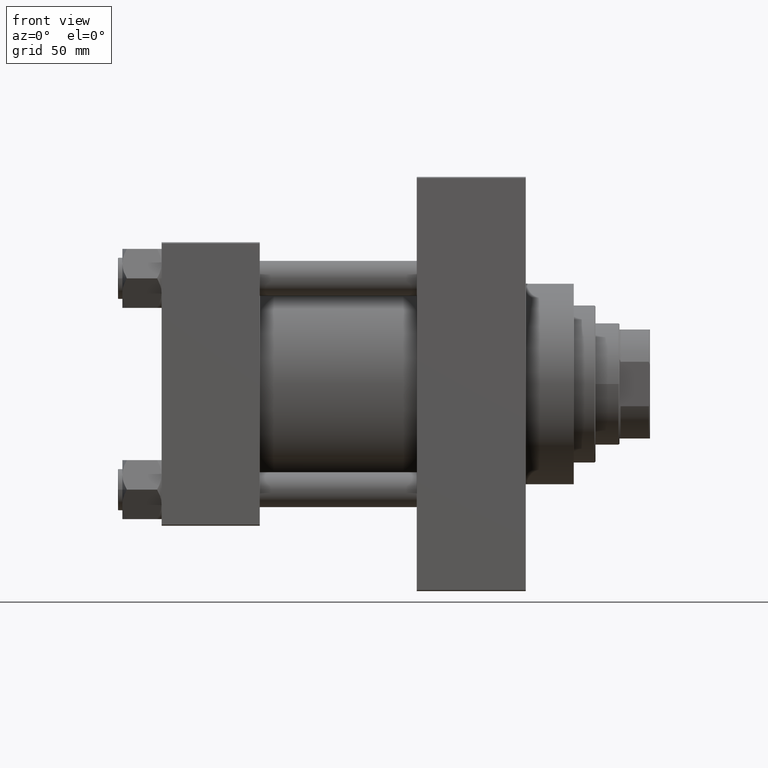
[diagram: clean part render]
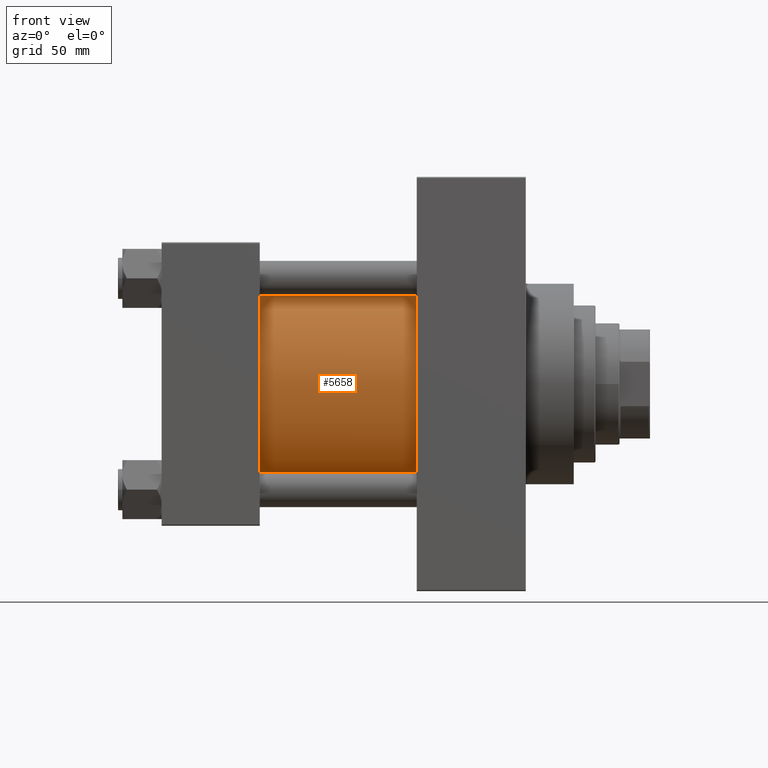
[diagram: same view with one face highlighted and labeled with its STEP entity id]
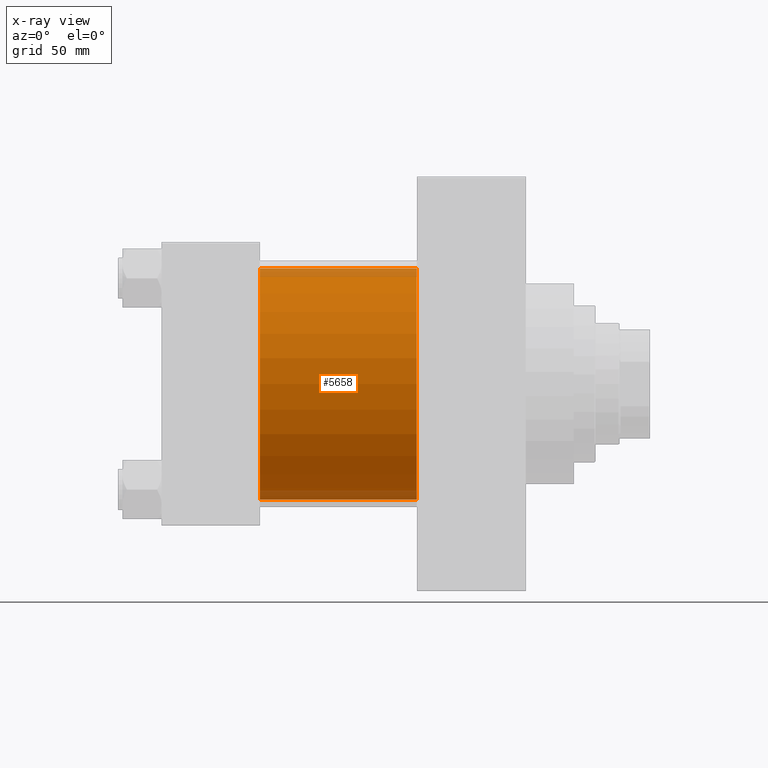
[diagram: x-ray of the same camera — body ghosted, the highlighted face saturated]
A machine part, front view. The second image highlights one B-rep face of the part: STEP entity #5658.
The next image is the same camera in x-ray: the body ghosted, the highlighted face saturated — about 8% of this face is hidden behind the body in this view.
In plain terms, the highlighted cylindrical surface (partial cylindrical patch) has radius 53 mm, axis along (-1, -0, -0).
Its self-contained STEP definition (entity closure, byte-faithful):
#1127 = EDGE_CURVE ( 'NONE', #1803, #9457, #25954, .T. ) ;
#1803 = VERTEX_POINT ( 'NONE', #43095 ) ;
#2629 = ORIENTED_EDGE ( 'NONE', *, *, #40618, .F. ) ;
#4057 = LINE ( 'NONE', #40272, #32794 ) ;
#5658 = ADVANCED_FACE ( 'NONE', ( #28198 ), #20026, .T. ) ;
#6395 = LINE ( 'NONE', #46246, #18081 ) ;
#9298 = DIRECTION ( 'NONE',  ( 1.000000000000000000, -0.000000000000000000, 0.000000000000000000 ) ) ;
#9457 = VERTEX_POINT ( 'NONE', #22398 ) ;
#10032 = DIRECTION ( 'NONE',  ( -1.000000000000000000, -0.000000000000000000, -0.000000000000000000 ) ) ;
#10576 = AXIS2_PLACEMENT_3D ( 'NONE', #20486, #12772, #35217 ) ;
#11554 = DIRECTION ( 'NONE',  ( -1.000000000000000000, -0.000000000000000000, -0.000000000000000000 ) ) ;
#12772 = DIRECTION ( 'NONE',  ( -1.000000000000000000, -0.000000000000000000, -0.000000000000000000 ) ) ;
#14861 = CARTESIAN_POINT ( 'NONE',  ( 117.0000000000000000, -2.602085213965210642E-15, 0.000000000000000000 ) ) ;
#15741 = CARTESIAN_POINT ( 'NONE',  ( 117.0000000000000000, -2.602085213965210642E-15, 53.00000000000000711 ) ) ;
#18081 = VECTOR ( 'NONE', #10032, 1000.000000000000000 ) ;
#20026 = CYLINDRICAL_SURFACE ( 'NONE', #10576, 53.00000000000000711 ) ;
#20391 = DIRECTION ( 'NONE',  ( 0.000000000000000000, 0.000000000000000000, 1.000000000000000000 ) ) ;
#20486 = CARTESIAN_POINT ( 'NONE',  ( 117.0000000000000000, -2.602085213965210642E-15, 0.000000000000000000 ) ) ;
#22398 = CARTESIAN_POINT ( 'NONE',  ( 45.00000000000000000, 3.888542821515762466E-15, -53.00000000000000711 ) ) ;
#23350 = AXIS2_PLACEMENT_3D ( 'NONE', #14861, #25945, #37052 ) ;
#23391 = VERTEX_POINT ( 'NONE', #15741 ) ;
#24233 = ORIENTED_EDGE ( 'NONE', *, *, #33018, .F. ) ;
#24278 = ORIENTED_EDGE ( 'NONE', *, *, #1127, .T. ) ;
#25945 = DIRECTION ( 'NONE',  ( 1.000000000000000000, 0.000000000000000000, 0.000000000000000000 ) ) ;
#25954 = CIRCLE ( 'NONE', #35245, 53.00000000000000711 ) ;
#27156 = ORIENTED_EDGE ( 'NONE', *, *, #38577, .T. ) ;
#28198 = FACE_OUTER_BOUND ( 'NONE', #28823, .T. ) ;
#28823 = EDGE_LOOP ( 'NONE', ( #2629, #24233, #27156, #24278 ) ) ;
#32794 = VECTOR ( 'NONE', #11554, 1000.000000000000000 ) ;
#33018 = EDGE_CURVE ( 'NONE', #23391, #33088, #35575, .T. ) ;
#33088 = VERTEX_POINT ( 'NONE', #43590 ) ;
#35217 = DIRECTION ( 'NONE',  ( 0.000000000000000000, 0.000000000000000000, 1.000000000000000000 ) ) ;
#35245 = AXIS2_PLACEMENT_3D ( 'NONE', #42367, #9298, #20391 ) ;
#35575 = CIRCLE ( 'NONE', #23350, 53.00000000000000711 ) ;
#37052 = DIRECTION ( 'NONE',  ( 0.000000000000000000, 0.000000000000000000, -1.000000000000000000 ) ) ;
#38577 = EDGE_CURVE ( 'NONE', #23391, #1803, #6395, .T. ) ;
#40272 = CARTESIAN_POINT ( 'NONE',  ( 117.0000000000000000, 3.888542821515762466E-15, -53.00000000000000711 ) ) ;
#40618 = EDGE_CURVE ( 'NONE', #33088, #9457, #4057, .T. ) ;
#42367 = CARTESIAN_POINT ( 'NONE',  ( 45.00000000000000000, -2.602085213965210642E-15, 0.000000000000000000 ) ) ;
#43095 = CARTESIAN_POINT ( 'NONE',  ( 45.00000000000000000, -2.602085213965210642E-15, 53.00000000000000711 ) ) ;
#43590 = CARTESIAN_POINT ( 'NONE',  ( 117.0000000000000000, 3.888542821515762466E-15, -53.00000000000000711 ) ) ;
#46246 = CARTESIAN_POINT ( 'NONE',  ( 117.0000000000000000, -2.602085213965210642E-15, 53.00000000000000711 ) ) ;